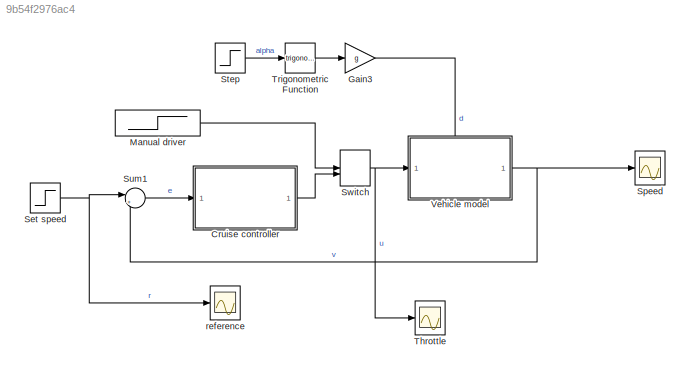
MODEL slx_9b54f2976ac4
KIND model
CONFIG AbsTol = auto
CONFIG EnableMultiTasking = off
CONFIG FixedStep = auto
CONFIG MaxStep = 1e-3
CONFIG MinStep = auto
CONFIG RelTol = 1e-3
CONFIG SampleTimeConstraint = Unconstrained
CONFIG SolverName = ode45
CONFIG StartTime = 0.0
CONFIG StopTime = 100
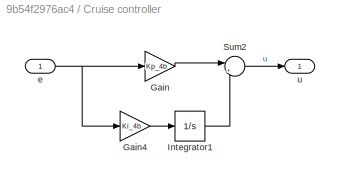
BLOCK [SubSystem] Cruise controller
BLOCK [Gain] Cruise controller/Gain
  Gain = Kp_4b
BLOCK [Gain] Cruise controller/Gain4
  Gain = Ki_4b
BLOCK [Integrator] Cruise controller/Integrator1
  InitialCondition = a*25/b
BLOCK [Sum] Cruise controller/Sum2
  Inputs = |++
BLOCK [Inport] Cruise controller/e
BLOCK [Outport] Cruise controller/u
BLOCK [Gain] Gain3
  Gain = g
BLOCK [Step] Manual driver
  After = 30*a/b
  Before = 25*a/b
  SampleTime = 0
BLOCK [Step] Set speed
  After = 30
  Before = 25
  SampleTime = 0
BLOCK [Scope] Speed
  Floating = off
  NumInputPorts = 1
  ScopeSpecificationString = Simulink.scopes.TimeScopeBlockCfg('CurrentConfiguration', extmgr.ConfigurationSet(extmgr.Configuration('Core','General UI',true,'FigureColor',[1 1 1]),extmgr.Configuration('Core','Source UI',true),extmgr.Configuration('Sources','WiredSimulink',true,'DataLogging',true,'DataLoggingSaveFormat','StructureWithTime','DataLoggingDecimation','10','DataLoggingDecimateData',true,'DataLoggingVariableName','s...<+1877ch>
BLOCK [Step] Step
  After = 0.1
  SampleTime = 0
  Time = 1000
BLOCK [Sum] Sum1
  Inputs = |+-
BLOCK [ManualSwitch] Switch
  CurrentSetting = 0
BLOCK [Scope] Throttle
  Floating = off
  NumInputPorts = 1
  ScopeSpecificationString = Simulink.scopes.TimeScopeBlockCfg('CurrentConfiguration', extmgr.ConfigurationSet(extmgr.Configuration('Core','General UI',true),extmgr.Configuration('Core','Source UI',true),extmgr.Configuration('Sources','WiredSimulink',true,'DataLoggingVariableName','ScopeData1','DataLoggingSaveFormat','Array','DataLoggingDecimation','1','DataLoggingDecimateData',true),extmgr.Configuration('Visuals','Time Domai...<+1649ch>
BLOCK [Trigonometry] Trigonometric Function
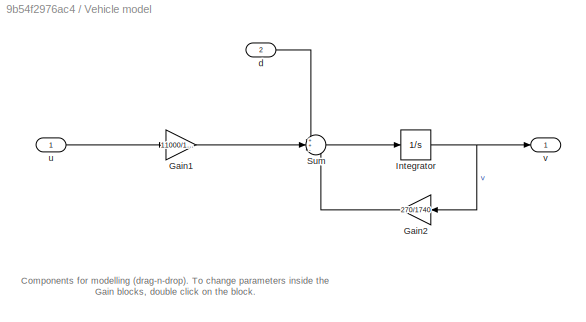
BLOCK [SubSystem] Vehicle model
  PortSchema = {"entries":[{"content":{"sides":[{"content":{"connectorIds":["In1"]},"type":"ConnectorPlacement.EquallySpacedRectSide","uuid":"8188ec2e-7b14-4fd6-ab55-7cea6e9f54e2"},{"content":{"connectorIds":["Out1"],"side":"RIGHT"},"type":"ConnectorPlacement.EquallySpacedRectSide","uuid":"403e2e46-1697-4bb6-98fa-f8a08edec7c4"},{"content":{"connectorIds":["In2"],"side":"TOP"},"type":"ConnectorPlacement.EquallySp...<+389ch>
BLOCK [Gain] Vehicle model/Gain1
  Gain = 11000/1740
BLOCK [Gain] Vehicle model/Gain2
  Gain = 270/1740
  NameLocation = top
BLOCK [Integrator] Vehicle model/Integrator
  InitialCondition = 25
BLOCK [Sum] Vehicle model/Sum
  Inputs = ++-
BLOCK [Inport] Vehicle model/d
  Port = 2
BLOCK [Inport] Vehicle model/u
BLOCK [Outport] Vehicle model/v
BLOCK [Scope] reference
  Floating = off
  NumInputPorts = 1
  ScopeSpecificationString = Simulink.scopes.TimeScopeBlockCfg('CurrentConfiguration', extmgr.ConfigurationSet(extmgr.Configuration('Core','General UI',true),extmgr.Configuration('Core','Source UI',true),extmgr.Configuration('Sources','WiredSimulink',true,'DataLoggingSaveFormat','Array','DataLoggingDecimation','1','DataLoggingDecimateData',true),extmgr.Configuration('Visuals','Time Domain',true,'SerializedDisplays',{struct('M...<+1604ch>
ANNOTATION Vehicle model: Components for modelling (drag-n-drop). To change parameters inside the Gain blocks, double click on the block.
LINE Cruise controller/Gain4:1 -> Cruise controller/Integrator1:1
LINE Cruise controller/Gain:1 -> Cruise controller/Sum2:1
LINE Cruise controller/Integrator1:1 -> Cruise controller/Sum2:2
LINE Cruise controller/Sum2:1 -> Cruise controller/u:1
NET Cruise controller/e:1 -> Cruise controller/Gain4:1, Cruise controller/Gain:1
LINE Cruise controller:1 -> Switch:2
LINE Gain3:1 -> Vehicle model:2
LINE Manual driver:1 -> Switch:1
NET Set speed:1 -> Sum1:1, reference:1
LINE Step:1 -> Trigonometric Function:1
LINE Sum1:1 -> Cruise controller:1
NET Switch:1 -> Throttle:1, Vehicle model:1
LINE Trigonometric Function:1 -> Gain3:1
LINE Vehicle model/Gain1:1 -> Vehicle model/Sum:2
LINE Vehicle model/Gain2:1 -> Vehicle model/Sum:3
NET Vehicle model/Integrator:1 -> Vehicle model/Gain2:1, Vehicle model/v:1
LINE Vehicle model/Sum:1 -> Vehicle model/Integrator:1
LINE Vehicle model/d:1 -> Vehicle model/Sum:1
LINE Vehicle model/u:1 -> Vehicle model/Gain1:1
NET Vehicle model:1 -> Speed:1, Sum1:2
note: NET lines group one-source signal fan-out (src -> all destinations, sorted); 1:1 wires keep LINE
